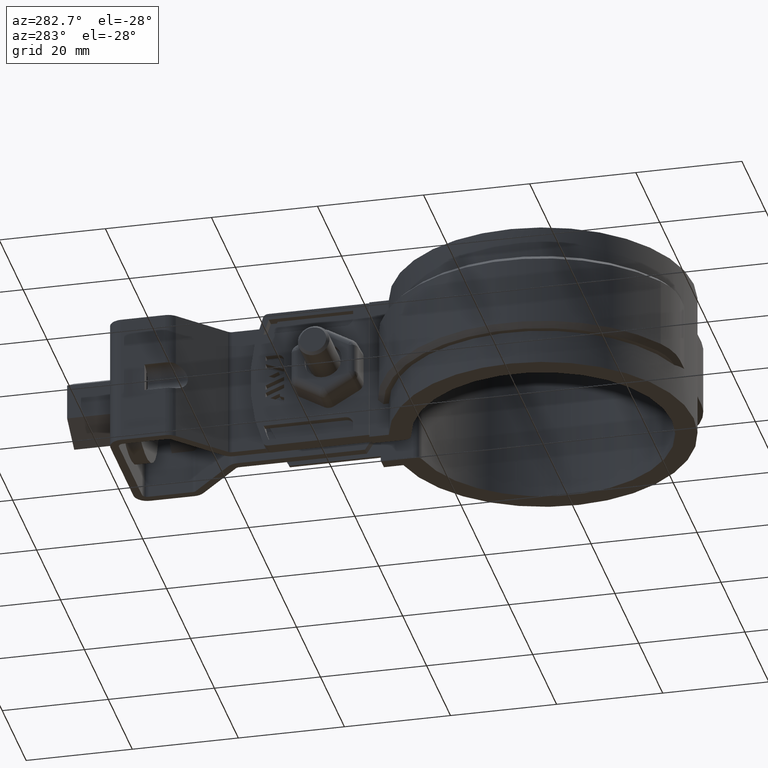
[diagram: clean part render]
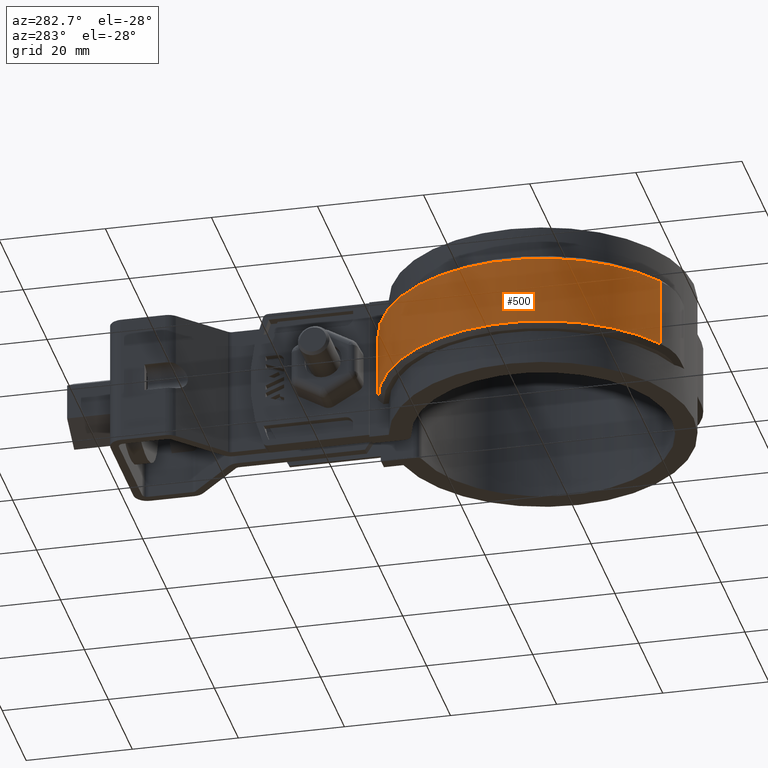
[diagram: same view with one face highlighted and labeled with its STEP entity id]
A machine part, auxiliary view. The second image highlights one B-rep face of the part: STEP entity #500.
In plain terms, the highlighted cylindrical surface (partial cylindrical patch) has radius 30.395 mm, axis along (0, 0, 1).
Its self-contained STEP definition (entity closure, byte-faithful):
#500 = ADVANCED_FACE( '', ( #1001 ), #1002, .T. );
#1001 = FACE_OUTER_BOUND( '', #2386, .T. );
#1002 = CYLINDRICAL_SURFACE( '', #2387, 30.3950000000000 );
#2386 = EDGE_LOOP( '', ( #5809, #5810, #5811, #5812 ) );
#2387 = AXIS2_PLACEMENT_3D( '', #5813, #5814, #5815 );
#5809 = ORIENTED_EDGE( '', *, *, #8022, .F. );
#5810 = ORIENTED_EDGE( '', *, *, #8010, .T. );
#5811 = ORIENTED_EDGE( '', *, *, #8035, .T. );
#5812 = ORIENTED_EDGE( '', *, *, #8030, .T. );
#5813 = CARTESIAN_POINT( '', ( -8.67361737988404E-016, -3.46944695195361E-015, -20.0000000000000 ) );
#5814 = DIRECTION( '', ( 0.000000000000000, 0.000000000000000, 1.00000000000000 ) );
#5815 = DIRECTION( '', ( 0.194983714095246, 0.980806480014087, 0.000000000000000 ) );
#8010 = EDGE_CURVE( '', #9272, #9050, #9275, .T. );
#8022 = EDGE_CURVE( '', #9272, #9290, #9291, .F. );
#8030 = EDGE_CURVE( '', #9301, #9290, #9302, .T. );
#8035 = EDGE_CURVE( '', #9050, #9301, #9308, .T. );
#9050 = VERTEX_POINT( '', #12177 );
#9272 = VERTEX_POINT( '', #13182 );
#9275 = CIRCLE( '', #13188, 30.3950000000000 );
#9290 = VERTEX_POINT( '', #13216 );
#9291 = LINE( '', #13217, #13218 );
#9301 = VERTEX_POINT( '', #13237 );
#9302 = CIRCLE( '', #13238, 30.3950000000000 );
#9308 = LINE( '', #13247, #13248 );
#12177 = CARTESIAN_POINT( '', ( -16.0865111739769, -25.7891485561179, -19.0000000000000 ) );
#13182 = CARTESIAN_POINT( '', ( -6.09999999999999, 29.7766019720182, -19.0000000000000 ) );
#13188 = AXIS2_PLACEMENT_3D( '', #15266, #15267, #15268 );
#13216 = CARTESIAN_POINT( '', ( -6.09999999999999, 29.7766019720182, -6.00000000000001 ) );
#13217 = CARTESIAN_POINT( '', ( -6.09999999999999, 29.7766019720182, -20.0000000000000 ) );
#13218 = VECTOR( '', #15282, 1000.00000000000 );
#13237 = CARTESIAN_POINT( '', ( -16.0865111739769, -25.7891485561179, -6.00000000000000 ) );
#13238 = AXIS2_PLACEMENT_3D( '', #15289, #15290, #15291 );
#13247 = CARTESIAN_POINT( '', ( -16.0865111739769, -25.7891485561179, -20.0000000000000 ) );
#13248 = VECTOR( '', #15298, 1000.00000000000 );
#15266 = CARTESIAN_POINT( '', ( -8.67361737988404E-016, -3.46944695195361E-015, -19.0000000000000 ) );
#15267 = DIRECTION( '', ( 0.000000000000000, 0.000000000000000, 1.00000000000000 ) );
#15268 = DIRECTION( '', ( 1.00000000000000, 0.000000000000000, 0.000000000000000 ) );
#15282 = DIRECTION( '', ( 0.000000000000000, 0.000000000000000, -1.00000000000000 ) );
#15289 = CARTESIAN_POINT( '', ( -8.67361737988404E-016, -3.46944695195361E-015, -6.00000000000001 ) );
#15290 = DIRECTION( '', ( 0.000000000000000, 0.000000000000000, -1.00000000000000 ) );
#15291 = DIRECTION( '', ( -1.00000000000000, 0.000000000000000, 0.000000000000000 ) );
#15298 = DIRECTION( '', ( 0.000000000000000, 0.000000000000000, 1.00000000000000 ) );